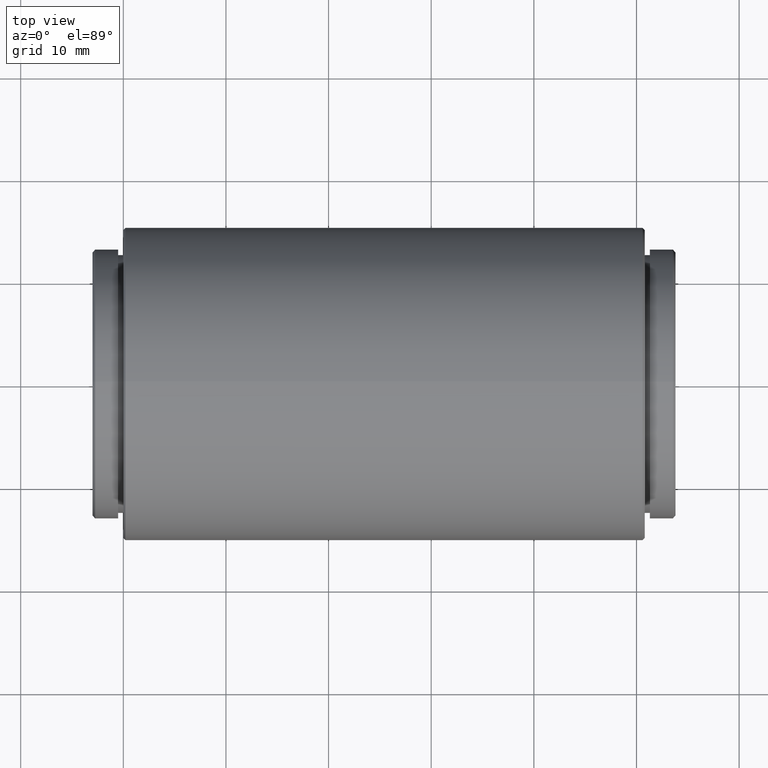
[diagram: clean part render]
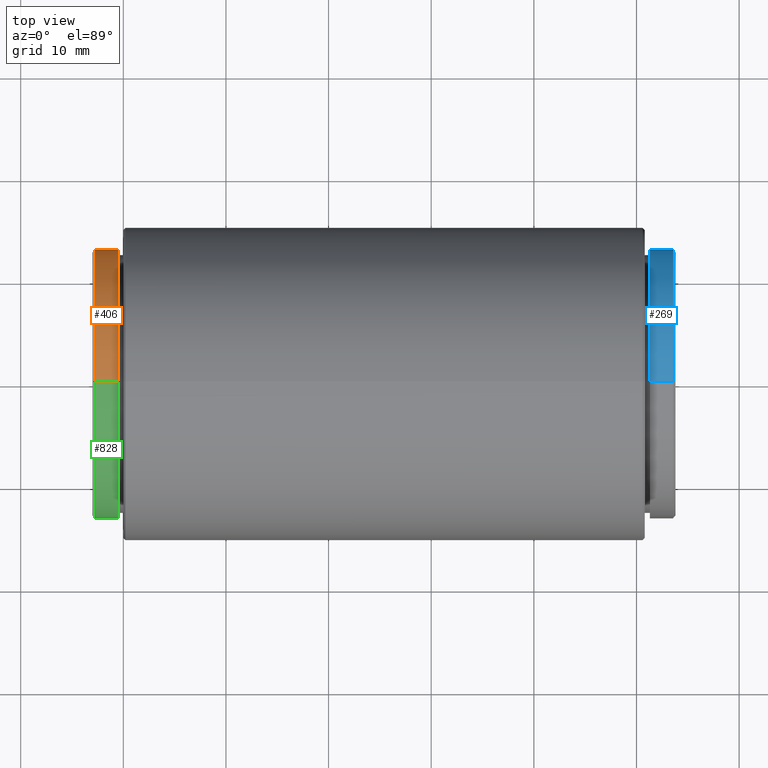
[diagram: same view with three faces highlighted in distinct colors, each labeled with its STEP entity id]
A machine part, top view with three faces highlighted in distinct colors.
Their STEP definitions:

[orange] entity #406 — the highlighted cylindrical surface (partial cylindrical patch) has radius 13.1 mm, axis along (1, -0, -0).
#22 = DIRECTION ( 'NONE',  ( 0.000000000000000000, 0.000000000000000000, 1.000000000000000000 ) ) ;
#43 = ORIENTED_EDGE ( 'NONE', *, *, #71, .T. ) ;
#66 = FACE_OUTER_BOUND ( 'NONE', #396, .T. ) ;
#69 = DIRECTION ( 'NONE',  ( 0.000000000000000000, 0.000000000000000000, -1.000000000000000000 ) ) ;
#71 = EDGE_CURVE ( 'NONE', #367, #444, #746, .T. ) ;
#138 = CARTESIAN_POINT ( 'NONE',  ( -52.75000000000000000, 0.000000000000000000, -13.10000000000000142 ) ) ;
#219 = AXIS2_PLACEMENT_3D ( 'NONE', #375, #528, #693 ) ;
#272 = DIRECTION ( 'NONE',  ( 1.000000000000000000, -0.000000000000000000, -0.000000000000000000 ) ) ;
#275 = DIRECTION ( 'NONE',  ( 1.000000000000000000, -0.000000000000000000, -0.000000000000000000 ) ) ;
#367 = VERTEX_POINT ( 'NONE', #138 ) ;
#375 = CARTESIAN_POINT ( 'NONE',  ( -50.50000000000000000, 0.000000000000000000, 0.000000000000000000 ) ) ;
#396 = EDGE_LOOP ( 'NONE', ( #43, #658, #708, #422 ) ) ;
#399 = AXIS2_PLACEMENT_3D ( 'NONE', #1001, #272, #22 ) ;
#402 = VECTOR ( 'NONE', #275, 1000.000000000000000 ) ;
#406 = ADVANCED_FACE ( 'NONE', ( #66 ), #558, .T. ) ;
#422 = ORIENTED_EDGE ( 'NONE', *, *, #843, .F. ) ;
#444 = VERTEX_POINT ( 'NONE', #646 ) ;
#528 = DIRECTION ( 'NONE',  ( 1.000000000000000000, -0.000000000000000000, -0.000000000000000000 ) ) ;
#540 = CARTESIAN_POINT ( 'NONE',  ( -53.00000000000000711, 0.000000000000000000, 0.000000000000000000 ) ) ;
#558 = CYLINDRICAL_SURFACE ( 'NONE', #985, 13.10000000000000142 ) ;
#621 = DIRECTION ( 'NONE',  ( 1.000000000000000000, -0.000000000000000000, -0.000000000000000000 ) ) ;
#622 = EDGE_CURVE ( 'NONE', #444, #872, #702, .T. ) ;
#623 = DIRECTION ( 'NONE',  ( 1.000000000000000000, -0.000000000000000000, -0.000000000000000000 ) ) ;
#626 = CARTESIAN_POINT ( 'NONE',  ( -50.50000000000000000, 0.000000000000000000, -13.10000000000000142 ) ) ;
#646 = CARTESIAN_POINT ( 'NONE',  ( -52.75000000000000000, 1.604287306883033044E-15, 13.10000000000000142 ) ) ;
#658 = ORIENTED_EDGE ( 'NONE', *, *, #622, .T. ) ;
#693 = DIRECTION ( 'NONE',  ( 0.000000000000000000, 0.000000000000000000, -1.000000000000000000 ) ) ;
#702 = LINE ( 'NONE', #763, #402 ) ;
#708 = ORIENTED_EDGE ( 'NONE', *, *, #727, .F. ) ;
#727 = EDGE_CURVE ( 'NONE', #819, #872, #965, .T. ) ;
#729 = VECTOR ( 'NONE', #623, 1000.000000000000000 ) ;
#746 = CIRCLE ( 'NONE', #399, 13.10000000000000142 ) ;
#763 = CARTESIAN_POINT ( 'NONE',  ( -53.00000000000000711, 1.604287306883033044E-15, 13.10000000000000142 ) ) ;
#819 = VERTEX_POINT ( 'NONE', #626 ) ;
#843 = EDGE_CURVE ( 'NONE', #367, #819, #945, .T. ) ;
#872 = VERTEX_POINT ( 'NONE', #946 ) ;
#945 = LINE ( 'NONE', #1034, #729 ) ;
#946 = CARTESIAN_POINT ( 'NONE',  ( -50.50000000000000000, 1.604287306883033044E-15, 13.10000000000000142 ) ) ;
#965 = CIRCLE ( 'NONE', #219, 13.10000000000000142 ) ;
#985 = AXIS2_PLACEMENT_3D ( 'NONE', #540, #621, #69 ) ;
#1001 = CARTESIAN_POINT ( 'NONE',  ( -52.75000000000000000, 0.000000000000000000, 0.000000000000000000 ) ) ;
#1034 = CARTESIAN_POINT ( 'NONE',  ( -53.00000000000000711, 0.000000000000000000, -13.10000000000000142 ) ) ;

[blue] entity #269 — the highlighted cylindrical surface (partial cylindrical patch) has radius 13.1 mm, axis along (-1, -0, -0).
#62 = CARTESIAN_POINT ( 'NONE',  ( 3.550000000000008260, 0.000000000000000000, 0.000000000000000000 ) ) ;
#110 = VERTEX_POINT ( 'NONE', #185 ) ;
#185 = CARTESIAN_POINT ( 'NONE',  ( 1.300000000000000044, 1.604287306883033044E-15, -13.10000000000000142 ) ) ;
#197 = AXIS2_PLACEMENT_3D ( 'NONE', #62, #521, #856 ) ;
#202 = AXIS2_PLACEMENT_3D ( 'NONE', #286, #361, #936 ) ;
#248 = VERTEX_POINT ( 'NONE', #607 ) ;
#259 = VERTEX_POINT ( 'NONE', #854 ) ;
#269 = ADVANCED_FACE ( 'NONE', ( #560 ), #683, .T. ) ;
#285 = EDGE_CURVE ( 'NONE', #259, #248, #657, .T. ) ;
#286 = CARTESIAN_POINT ( 'NONE',  ( 3.799999999999999822, 0.000000000000000000, 0.000000000000000000 ) ) ;
#291 = VECTOR ( 'NONE', #731, 1000.000000000000000 ) ;
#314 = DIRECTION ( 'NONE',  ( 0.000000000000000000, 0.000000000000000000, -1.000000000000000000 ) ) ;
#361 = DIRECTION ( 'NONE',  ( -1.000000000000000000, -0.000000000000000000, -0.000000000000000000 ) ) ;
#430 = ORIENTED_EDGE ( 'NONE', *, *, #472, .T. ) ;
#440 = EDGE_LOOP ( 'NONE', ( #463, #430, #996, #616 ) ) ;
#450 = DIRECTION ( 'NONE',  ( -1.000000000000000000, -0.000000000000000000, -0.000000000000000000 ) ) ;
#456 = EDGE_CURVE ( 'NONE', #110, #248, #717, .T. ) ;
#463 = ORIENTED_EDGE ( 'NONE', *, *, #769, .T. ) ;
#472 = EDGE_CURVE ( 'NONE', #510, #110, #493, .T. ) ;
#493 = LINE ( 'NONE', #879, #291 ) ;
#510 = VERTEX_POINT ( 'NONE', #915 ) ;
#515 = AXIS2_PLACEMENT_3D ( 'NONE', #634, #888, #314 ) ;
#521 = DIRECTION ( 'NONE',  ( -1.000000000000000000, 0.000000000000000000, 0.000000000000000000 ) ) ;
#560 = FACE_OUTER_BOUND ( 'NONE', #440, .T. ) ;
#607 = CARTESIAN_POINT ( 'NONE',  ( 1.300000000000000044, 0.000000000000000000, 13.10000000000000142 ) ) ;
#616 = ORIENTED_EDGE ( 'NONE', *, *, #285, .F. ) ;
#627 = VECTOR ( 'NONE', #450, 1000.000000000000000 ) ;
#634 = CARTESIAN_POINT ( 'NONE',  ( 1.300000000000000044, 0.000000000000000000, 0.000000000000000000 ) ) ;
#657 = LINE ( 'NONE', #1015, #627 ) ;
#683 = CYLINDRICAL_SURFACE ( 'NONE', #202, 13.10000000000000142 ) ;
#717 = CIRCLE ( 'NONE', #515, 13.10000000000000142 ) ;
#731 = DIRECTION ( 'NONE',  ( -1.000000000000000000, -0.000000000000000000, -0.000000000000000000 ) ) ;
#769 = EDGE_CURVE ( 'NONE', #259, #510, #1007, .T. ) ;
#854 = CARTESIAN_POINT ( 'NONE',  ( 3.550000000000008260, 0.000000000000000000, 13.10000000000000142 ) ) ;
#856 = DIRECTION ( 'NONE',  ( 0.000000000000000000, 0.000000000000000000, -1.000000000000000000 ) ) ;
#879 = CARTESIAN_POINT ( 'NONE',  ( 3.799999999999999822, 1.604287306883033044E-15, -13.10000000000000142 ) ) ;
#888 = DIRECTION ( 'NONE',  ( 1.000000000000000000, 0.000000000000000000, 0.000000000000000000 ) ) ;
#915 = CARTESIAN_POINT ( 'NONE',  ( 3.550000000000008260, 1.604287306883033044E-15, -13.10000000000000142 ) ) ;
#936 = DIRECTION ( 'NONE',  ( 0.000000000000000000, 0.000000000000000000, 1.000000000000000000 ) ) ;
#996 = ORIENTED_EDGE ( 'NONE', *, *, #456, .T. ) ;
#1007 = CIRCLE ( 'NONE', #197, 13.10000000000000142 ) ;
#1015 = CARTESIAN_POINT ( 'NONE',  ( 3.799999999999999822, 0.000000000000000000, 13.10000000000000142 ) ) ;

[green] entity #828 — the highlighted cylindrical surface (partial cylindrical patch) has radius 13.1 mm, axis along (1, -0, -0).
#18 = ORIENTED_EDGE ( 'NONE', *, *, #750, .T. ) ;
#119 = ORIENTED_EDGE ( 'NONE', *, *, #391, .F. ) ;
#138 = CARTESIAN_POINT ( 'NONE',  ( -52.75000000000000000, 0.000000000000000000, -13.10000000000000142 ) ) ;
#150 = CIRCLE ( 'NONE', #1005, 13.10000000000000142 ) ;
#156 = DIRECTION ( 'NONE',  ( 0.000000000000000000, 0.000000000000000000, -1.000000000000000000 ) ) ;
#229 = DIRECTION ( 'NONE',  ( 1.000000000000000000, -0.000000000000000000, -0.000000000000000000 ) ) ;
#275 = DIRECTION ( 'NONE',  ( 1.000000000000000000, -0.000000000000000000, -0.000000000000000000 ) ) ;
#281 = ORIENTED_EDGE ( 'NONE', *, *, #622, .F. ) ;
#317 = DIRECTION ( 'NONE',  ( 1.000000000000000000, -0.000000000000000000, -0.000000000000000000 ) ) ;
#345 = ORIENTED_EDGE ( 'NONE', *, *, #843, .T. ) ;
#367 = VERTEX_POINT ( 'NONE', #138 ) ;
#391 = EDGE_CURVE ( 'NONE', #872, #819, #847, .T. ) ;
#402 = VECTOR ( 'NONE', #275, 1000.000000000000000 ) ;
#426 = AXIS2_PLACEMENT_3D ( 'NONE', #1032, #317, #156 ) ;
#444 = VERTEX_POINT ( 'NONE', #646 ) ;
#451 = CARTESIAN_POINT ( 'NONE',  ( -52.75000000000000000, 0.000000000000000000, 0.000000000000000000 ) ) ;
#526 = DIRECTION ( 'NONE',  ( 0.000000000000000000, 0.000000000000000000, 1.000000000000000000 ) ) ;
#536 = DIRECTION ( 'NONE',  ( 0.000000000000000000, 0.000000000000000000, -1.000000000000000000 ) ) ;
#622 = EDGE_CURVE ( 'NONE', #444, #872, #702, .T. ) ;
#623 = DIRECTION ( 'NONE',  ( 1.000000000000000000, -0.000000000000000000, -0.000000000000000000 ) ) ;
#626 = CARTESIAN_POINT ( 'NONE',  ( -50.50000000000000000, 0.000000000000000000, -13.10000000000000142 ) ) ;
#646 = CARTESIAN_POINT ( 'NONE',  ( -52.75000000000000000, 1.604287306883033044E-15, 13.10000000000000142 ) ) ;
#678 = FACE_OUTER_BOUND ( 'NONE', #737, .T. ) ;
#702 = LINE ( 'NONE', #763, #402 ) ;
#729 = VECTOR ( 'NONE', #623, 1000.000000000000000 ) ;
#737 = EDGE_LOOP ( 'NONE', ( #281, #18, #345, #119 ) ) ;
#750 = EDGE_CURVE ( 'NONE', #444, #367, #150, .T. ) ;
#763 = CARTESIAN_POINT ( 'NONE',  ( -53.00000000000000711, 1.604287306883033044E-15, 13.10000000000000142 ) ) ;
#782 = CARTESIAN_POINT ( 'NONE',  ( -50.50000000000000000, 0.000000000000000000, 0.000000000000000000 ) ) ;
#819 = VERTEX_POINT ( 'NONE', #626 ) ;
#828 = ADVANCED_FACE ( 'NONE', ( #678 ), #1021, .T. ) ;
#843 = EDGE_CURVE ( 'NONE', #367, #819, #945, .T. ) ;
#847 = CIRCLE ( 'NONE', #930, 13.10000000000000142 ) ;
#872 = VERTEX_POINT ( 'NONE', #946 ) ;
#930 = AXIS2_PLACEMENT_3D ( 'NONE', #782, #229, #536 ) ;
#945 = LINE ( 'NONE', #1034, #729 ) ;
#946 = CARTESIAN_POINT ( 'NONE',  ( -50.50000000000000000, 1.604287306883033044E-15, 13.10000000000000142 ) ) ;
#1005 = AXIS2_PLACEMENT_3D ( 'NONE', #451, #1023, #526 ) ;
#1021 = CYLINDRICAL_SURFACE ( 'NONE', #426, 13.10000000000000142 ) ;
#1023 = DIRECTION ( 'NONE',  ( 1.000000000000000000, -0.000000000000000000, -0.000000000000000000 ) ) ;
#1032 = CARTESIAN_POINT ( 'NONE',  ( -53.00000000000000711, 0.000000000000000000, 0.000000000000000000 ) ) ;
#1034 = CARTESIAN_POINT ( 'NONE',  ( -53.00000000000000711, 0.000000000000000000, -13.10000000000000142 ) ) ;